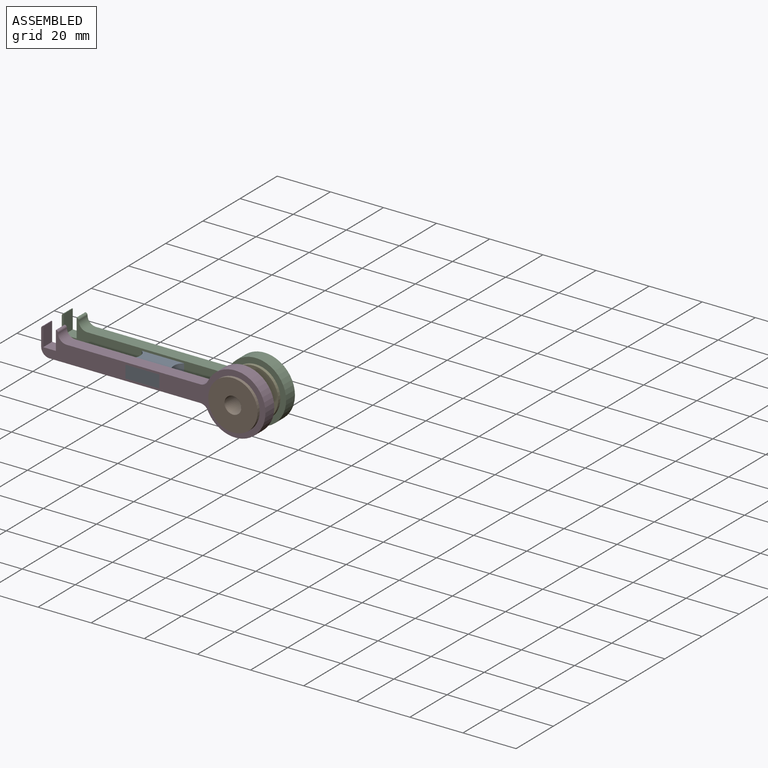
[diagram: assembled view]
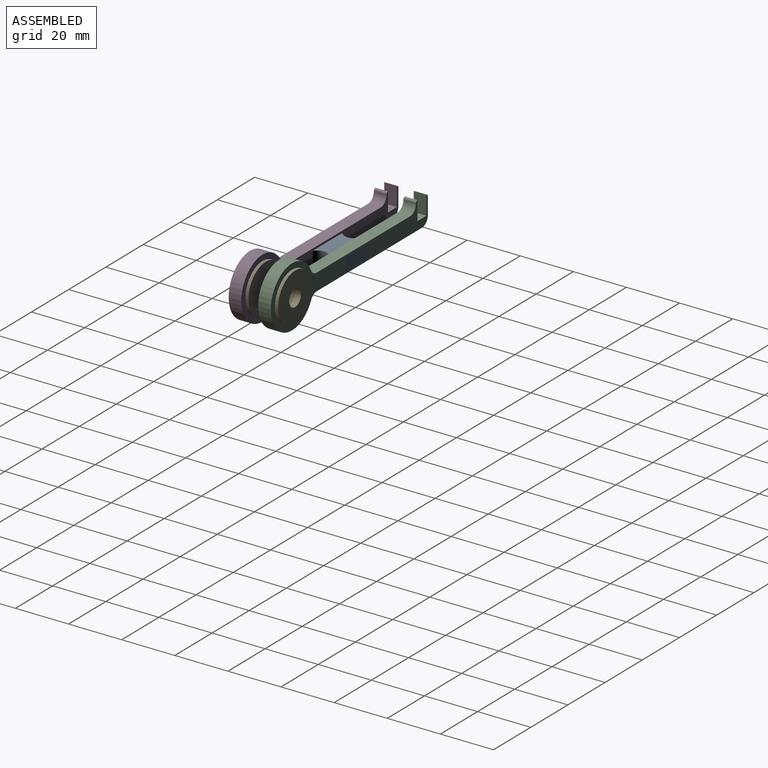
[diagram: assembled view, second angle]
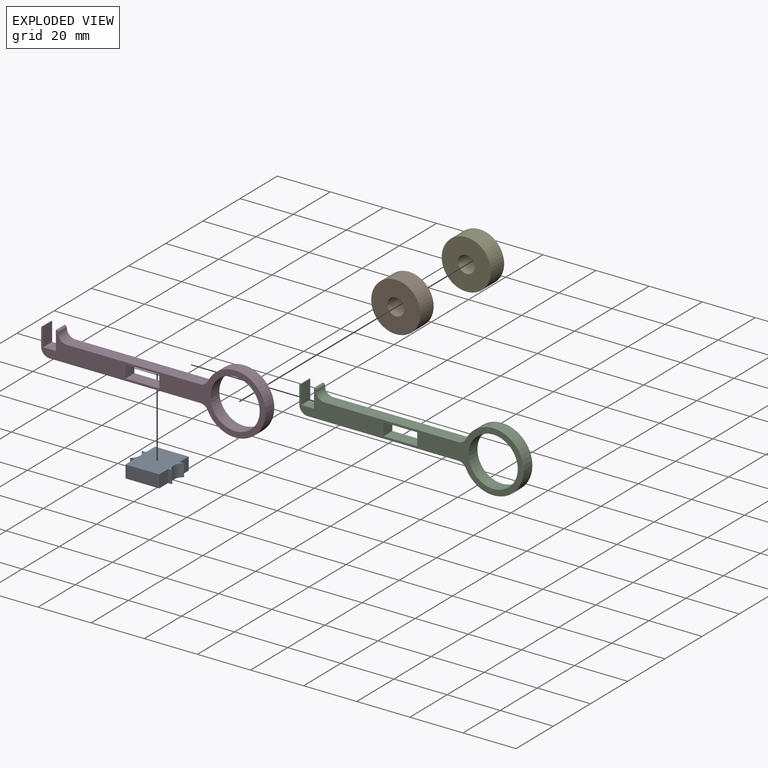
[diagram: exploded view]
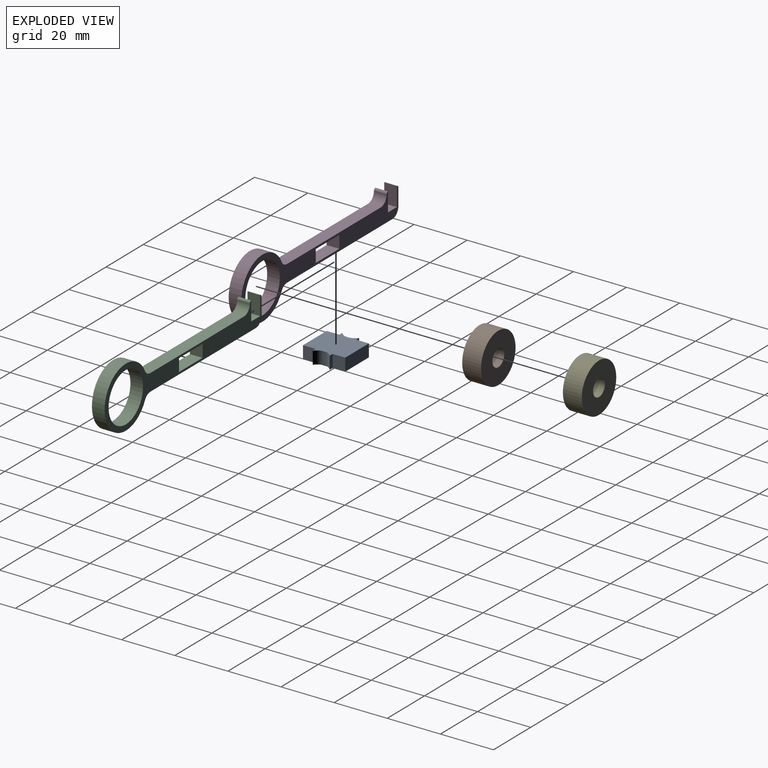
[diagram: exploded view, second angle]
ASSEMBLY  parts=5 mates=3
PART A: 22 faces, bbox 4.8x15.9x15.9 mm
  f0: plane 4.76x4.76mm, normal (0,0,1), area 22.7mm2, adj f1,f19,f20,f21
  f1: plane 4.76x1.59mm, normal (0,1,0), area 7.6mm2, adj f0,f2,f20,f21
  f2: plane 4.76x0.66mm, normal (0,-0.71,0.71), area 4.4mm2, adj f1,f3,f20,f21
  f3: cylinder r=3.17mm len=4.76mm, axis (-1,0,0), area 11.9mm2, adj f2,f4,f20,f21
  f4: plane 4.76x0.54mm, normal (0,0,1), area 2.6mm2, adj f3,f5,f20,f21
  f5: cylinder r=3.17mm len=4.76mm, axis (-1,0,0), area 11.9mm2, adj f4,f6,f20,f21
  f6: plane 4.76x0.66mm, normal (0,0.71,0.71), area 4.4mm2, adj f5,f7,f20,f21
  f7: plane 4.76x1.59mm, normal (0,-1,0), area 7.6mm2, adj f6,f8,f20,f21
  f8: plane 4.76x4.76mm, normal (0,0,1), area 22.7mm2, adj f7,f9,f20,f21
  f9: plane 12.7x4.76mm, normal (0,-1,0), area 60.5mm2, adj f8,f10,f20,f21
  f10: plane 4.76x4.76mm, normal (0,0,-1), area 22.7mm2, adj f9,f11,f20,f21
  f11: plane 4.76x1.59mm, normal (0,-1,0), area 7.6mm2, adj f10,f12,f20,f21
  f12: plane 4.76x0.66mm, normal (0,0.71,-0.71), area 4.4mm2, adj f11,f13,f20,f21
  f13: cylinder r=3.17mm len=4.76mm, axis (-1,0,0), area 11.9mm2, adj f12,f14,f20,f21
  f14: plane 4.76x0.54mm, normal (0,0,-1), area 2.6mm2, adj f13,f15,f20,f21
  f15: cylinder r=3.17mm len=4.76mm, axis (-1,0,0), area 11.9mm2, adj f14,f16,f20,f21
  f16: plane 4.76x0.66mm, normal (0,-0.71,-0.71), area 4.4mm2, adj f15,f17,f20,f21
  f17: plane 4.76x1.59mm, normal (0,1,0), area 7.6mm2, adj f16,f18,f20,f21
  f18: plane 4.76x4.76mm, normal (0,0,-1), area 22.7mm2, adj f17,f19,f20,f21
  f19: plane 12.7x4.76mm, normal (0,1,0), area 60.5mm2, adj f0,f18,f20,f21
  f20: plane 15.88x15.88mm, normal (1,0,0), area 207.5mm2, adj f0,f1,f2,f3,f4,f5,f6,f7
  f21: plane 15.88x15.88mm, normal (-1,0,0), area 207.5mm2, adj f0,f1,f2,f3,f4,f5,f6,f7
PART B: 4 faces, bbox 18.5x7.1x18.5 mm
  f0: cylinder r=3.17mm len=7.11mm, axis (0,1,0), area 141.9mm2, adj f2,f3
  f1: cylinder r=9.27mm len=18.54mm, axis (0,1,0), area 414.3mm2, adj f2,f3
  f2: plane 18.54x18.54mm, normal (0,-1,0), area 238.4mm2, adj f0,f1
  f3: plane 18.54x18.54mm, normal (0,1,0), area 238.4mm2, adj f0,f1
PART C: 20 faces, bbox 84.5x4.8x22.9 mm
  f0: plane 6.35x4.76mm, normal (-1,0,0), area 30.2mm2, adj f1,f2,f3,f19
  f1: plane 84.46x22.86mm, normal (0,-1,0), area 464.5mm2, adj f0,f3,f4,f5,f6,f7,f8,f9
  f2: plane 84.46x22.86mm, normal (0,1,0), area 464.5mm2, adj f0,f3,f4,f5,f6,f7,f8,f9
  f3: cylinder r=3.17mm len=4.76mm, axis (0,1,0), area 23.8mm2, adj f0,f1,f2,f4
  f4: plane 56.7x4.76mm, normal (0,0,-1), area 270mm2, adj f1,f2,f3,f5
  f5: cylinder r=3.17mm len=4.76mm, axis (0,1,0), area 17mm2, adj f1,f2,f4,f6
  f6: cylinder r=11.43mm len=22.86mm, axis (0,1,0), area 293.1mm2, adj f1,f2,f5,f7
  f7: cylinder r=3.17mm len=4.76mm, axis (0,1,0), area 17mm2, adj f1,f2,f6,f8
  f8: plane 50.35x4.76mm, normal (0,0,1), area 239.8mm2, adj f1,f2,f7,f9
  f9: cylinder r=3.17mm len=4.76mm, axis (0,1,0), area 23.8mm2, adj f1,f2,f8,f18
  f10: cylinder r=9.27mm len=18.54mm, axis (0,1,0), area 277.4mm2, adj f1,f2
  f11: plane 4.76x4.76mm, normal (-1,0,0), area 22.7mm2, adj f1,f2,f12,f14
  f12: plane 12.7x4.76mm, normal (0,0,-1), area 60.5mm2, adj f1,f2,f11,f13
  f13: plane 4.76x4.76mm, normal (1,0,0), area 22.7mm2, adj f1,f2,f12,f14
  f14: plane 12.7x4.76mm, normal (0,0,1), area 60.5mm2, adj f1,f2,f11,f13
  f15: plane 7.14x4.76mm, normal (-1,0,0), area 34mm2, adj f1,f2,f17,f18
  f16: plane 7.14x4.76mm, normal (1,0,0), area 34mm2, adj f1,f2,f17,f19
  f17: plane 4.76x4.76mm, normal (0,0,1), area 22.7mm2, adj f1,f2,f15,f16
  f18: cylinder r=0.79mm len=4.76mm, axis (0,-1,0), area 5.9mm2, adj f1,f2,f9,f15
  f19: cylinder r=0.79mm len=4.76mm, axis (0,-1,0), area 5.9mm2, adj f0,f1,f2,f16
PART D: same geometry as C
PART E: same geometry as B
PLACE A rot(axis=(0,1,0),90deg) t=(-63.79,-29.94,8.76)mm
PLACE B t=(-28.86,-24.01,6.38)mm
PLACE C t=(-63.79,-14.07,6.38)mm
PLACE D t=(-63.79,-25.18,6.38)mm
PLACE E t=(-28.86,-12.89,6.38)mm
MATE fastened A.f21 <-> D.f12  axis (0,0,1) through (-63.79,-29.94,8.76)mm
MATE fastened C.f10 <-> E.f1  axis (0,1,0) through (-28.86,-16.45,6.38)mm
MATE fastened B.f1 <-> D.f10  axis (0,1,0) through (-28.86,-27.56,6.38)mm
